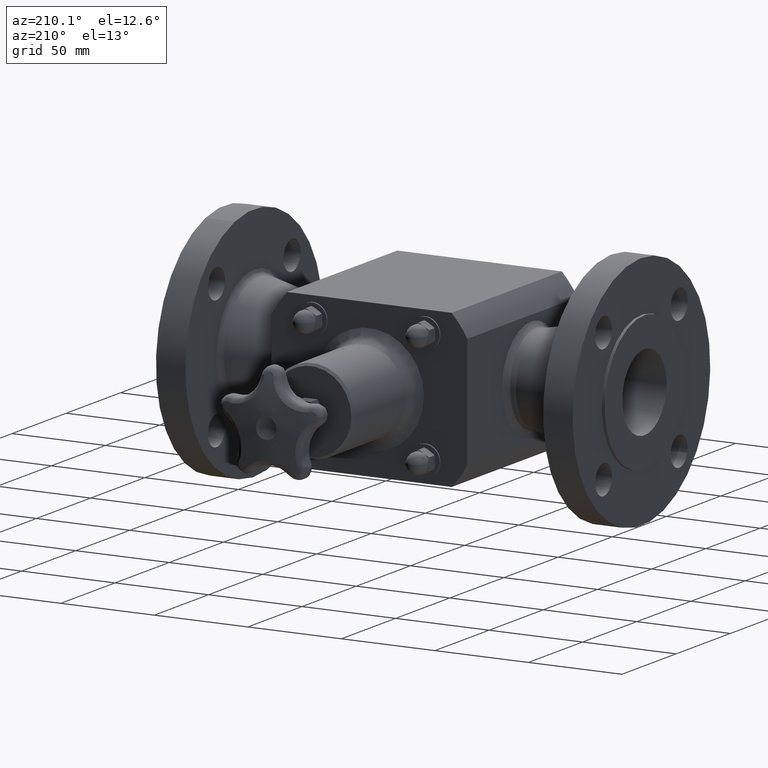
[diagram: clean part render]
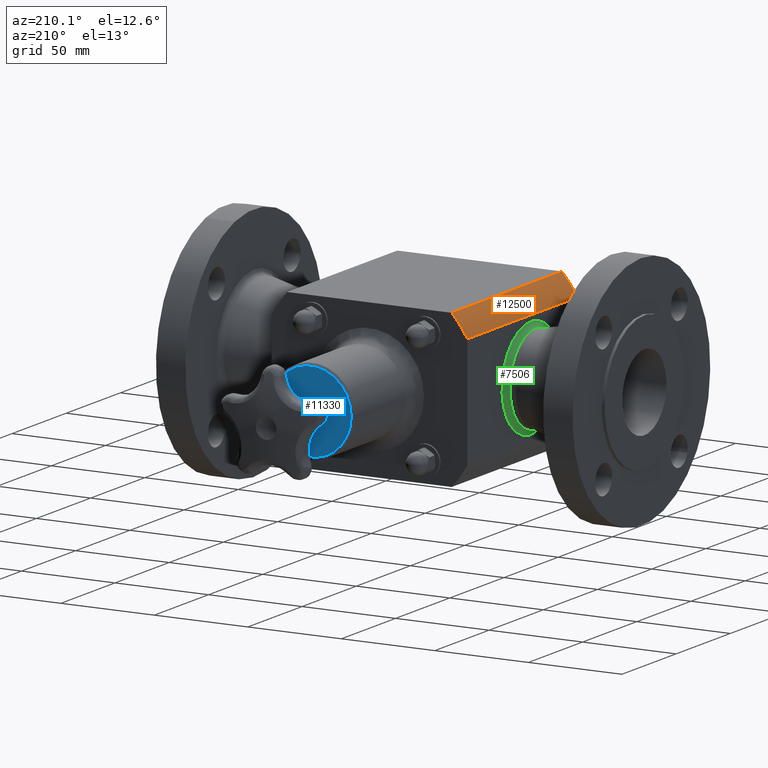
[diagram: same view with three faces highlighted in distinct colors, each labeled with its STEP entity id]
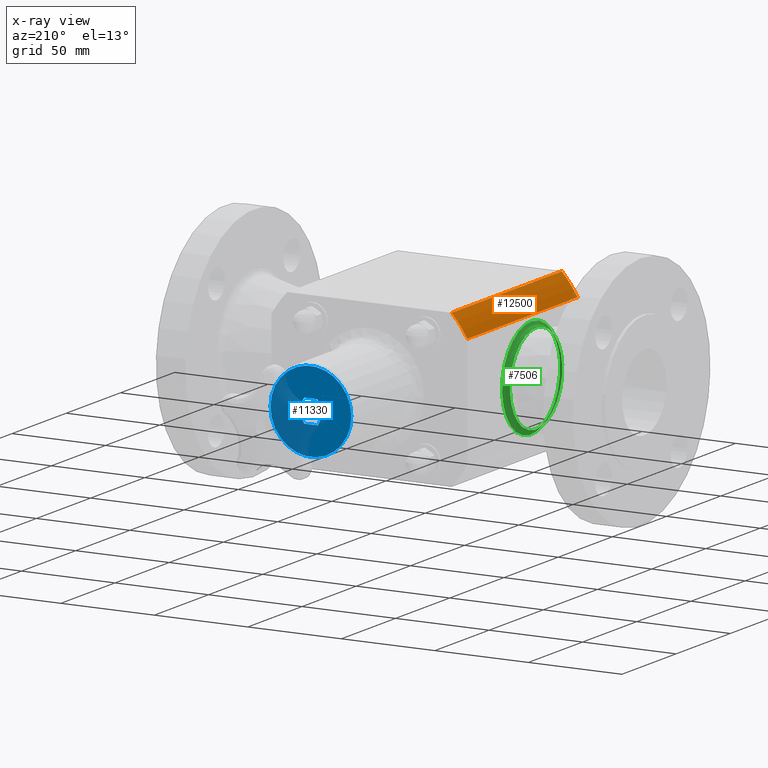
[diagram: x-ray of the same camera — body ghosted, the three highlighted faces saturated]
A machine part, auxiliary view with three faces highlighted in distinct colors.
The next image is the same camera in x-ray (body ghosted, the three faces saturated) — at least one of them is partly hidden behind the body in this view.
Their STEP definitions:

[orange] entity #12500 — the highlighted cylindrical surface (partial cylindrical patch) has radius 60.325 mm, axis along (-0, 1, -0).
#12442=CARTESIAN_POINT('',(-1.732050807568878,-3.706394E-016,1.625000000000000));
#12443=VERTEX_POINT('',#12442);
#12444=CARTESIAN_POINT('',(-1.732050807568883,4.000000000000052,1.624999999999998));
#12445=VERTEX_POINT('',#12444);
#12446=CARTESIAN_POINT('',(-1.732050807568878,-3.706394E-016,1.625000000000000));
#12447=DIRECTION('',(0.0,1.0,0.0));
#12448=VECTOR('',#12447,4.000000000000052);
#12449=LINE('',#12446,#12448);
#12450=EDGE_CURVE('',#12443,#12445,#12449,.T.);
#12468=CARTESIAN_POINT('',(0.0,0.0,0.0));
#12469=DIRECTION('',(-2.220446E-016,1.0,-8.586518E-018));
#12470=DIRECTION('',(0.868421052631579,1.885708E-016,-0.495827465300441));
#12471=AXIS2_PLACEMENT_3D('',#12468,#12469,#12470);
#12472=CYLINDRICAL_SURFACE('',#12471,2.375000000000000);
#12473=CARTESIAN_POINT('',(-2.062500000000000,-4.478556E-016,1.177590230088548));
#12474=VERTEX_POINT('',#12473);
#12475=CARTESIAN_POINT('',(-2.062500000000005,4.000000000000052,1.177590230088547));
#12476=VERTEX_POINT('',#12475);
#12477=CARTESIAN_POINT('',(-2.062500000000000,-4.478556E-016,1.177590230088548));
#12478=DIRECTION('',(0.0,1.0,0.0));
#12479=VECTOR('',#12478,4.000000000000053);
#12480=LINE('',#12477,#12479);
#12481=EDGE_CURVE('',#12474,#12476,#12480,.T.);
#12482=ORIENTED_EDGE('',*,*,#12481,.F.);
#12483=CARTESIAN_POINT('',(0.0,0.0,0.0));
#12484=DIRECTION('',(1.637588E-016,-1.0,-9.349857E-017));
#12485=DIRECTION('',(0.868421052631579,1.885708E-016,-0.495827465300441));
#12486=AXIS2_PLACEMENT_3D('',#12483,#12484,#12485);
#12487=CIRCLE('',#12486,2.375000000000000);
#12488=EDGE_CURVE('',#12443,#12474,#12487,.T.);
#12489=ORIENTED_EDGE('',*,*,#12488,.F.);
#12490=ORIENTED_EDGE('',*,*,#12450,.T.);
#12491=CARTESIAN_POINT('',(-5.694246E-015,4.000000000000054,-1.775295E-015));
#12492=DIRECTION('',(0.0,-1.0,0.0));
#12493=DIRECTION('',(1.0,0.0,0.0));
#12494=AXIS2_PLACEMENT_3D('',#12491,#12492,#12493);
#12495=CIRCLE('',#12494,2.375000000000000);
#12496=EDGE_CURVE('',#12445,#12476,#12495,.T.);
#12497=ORIENTED_EDGE('',*,*,#12496,.T.);
#12498=EDGE_LOOP('',(#12482,#12489,#12490,#12497));
#12499=FACE_OUTER_BOUND('',#12498,.T.);
#12500=ADVANCED_FACE('',(#12499),#12472,.T.);

[blue] entity #11330 — the highlighted planar face has unit normal (0, 1, 0).
#8388=CARTESIAN_POINT('',(-0.282324281633735,6.125000000000054,-2.066754E-015));
#8389=VERTEX_POINT('',#8388);
#8396=CARTESIAN_POINT('',(-0.141162140816871,6.125000000000054,0.244499999999998));
#8397=VERTEX_POINT('',#8396);
#8398=CARTESIAN_POINT('',(-0.141162140816871,6.125000000000053,0.244499999999998));
#8399=DIRECTION('',(-0.500000000000000,0.0,-0.866025403784439));
#8400=VECTOR('',#8399,0.282324281633727);
#8401=LINE('',#8398,#8400);
#8402=EDGE_CURVE('',#8397,#8389,#8401,.T.);
#8419=CARTESIAN_POINT('',(-0.141162140816871,6.125000000000054,-0.244500000000002));
#8420=VERTEX_POINT('',#8419);
#8427=CARTESIAN_POINT('',(-0.282324281633735,6.125000000000053,-2.109424E-015));
#8428=DIRECTION('',(0.500000000000001,0.0,-0.866025403784438));
#8429=VECTOR('',#8428,0.282324281633727);
#8430=LINE('',#8427,#8429);
#8431=EDGE_CURVE('',#8389,#8420,#8430,.T.);
#8443=CARTESIAN_POINT('',(0.141162140816856,6.125000000000054,-0.244500000000002));
#8444=VERTEX_POINT('',#8443);
#8451=CARTESIAN_POINT('',(-0.141162140816871,6.125000000000054,-0.244500000000002));
#8452=DIRECTION('',(1.0,0.0,0.0));
#8453=VECTOR('',#8452,0.282324281633727);
#8454=LINE('',#8451,#8453);
#8455=EDGE_CURVE('',#8420,#8444,#8454,.T.);
#8467=CARTESIAN_POINT('',(0.282324281633719,6.125000000000054,-1.746932E-015));
#8468=VERTEX_POINT('',#8467);
#8475=CARTESIAN_POINT('',(0.141162140816856,6.125000000000054,-0.244500000000002));
#8476=DIRECTION('',(0.500000000000000,0.0,0.866025403784439));
#8477=VECTOR('',#8476,0.282324281633727);
#8478=LINE('',#8475,#8477);
#8479=EDGE_CURVE('',#8444,#8468,#8478,.T.);
#8491=CARTESIAN_POINT('',(0.141162140816856,6.125000000000054,0.244499999999998));
#8492=VERTEX_POINT('',#8491);
#8499=CARTESIAN_POINT('',(0.282324281633719,6.125000000000054,-1.727785E-015));
#8500=DIRECTION('',(-0.500000000000000,0.0,0.866025403784438));
#8501=VECTOR('',#8500,0.282324281633727);
#8502=LINE('',#8499,#8501);
#8503=EDGE_CURVE('',#8468,#8492,#8502,.T.);
#8516=CARTESIAN_POINT('',(0.141162140816856,6.125000000000054,0.244499999999998));
#8517=DIRECTION('',(-1.0,0.0,0.0));
#8518=VECTOR('',#8517,0.282324281633727);
#8519=LINE('',#8516,#8518);
#8520=EDGE_CURVE('',#8492,#8397,#8519,.T.);
#11306=CARTESIAN_POINT('',(0.518749999999992,6.125000000000054,-1.714907E-015));
#11307=DIRECTION('',(0.0,1.0,0.0));
#11308=DIRECTION('',(0.0,0.0,1.0));
#11309=AXIS2_PLACEMENT_3D('',#11306,#11307,#11308);
#11310=PLANE('',#11309);
#11311=CARTESIAN_POINT('',(0.849999999999992,6.125000000000055,-1.676347E-015));
#11312=VERTEX_POINT('',#11311);
#11313=CARTESIAN_POINT('',(-7.833595E-015,6.125000000000054,-1.775295E-015));
#11314=DIRECTION('',(0.0,-1.0,0.0));
#11315=DIRECTION('',(1.0,0.0,0.0));
#11316=AXIS2_PLACEMENT_3D('',#11313,#11314,#11315);
#11317=CIRCLE('',#11316,0.850000000000000);
#11318=EDGE_CURVE('',#11312,#11312,#11317,.T.);
#11319=ORIENTED_EDGE('',*,*,#11318,.F.);
#11320=EDGE_LOOP('',(#11319));
#11321=FACE_OUTER_BOUND('',#11320,.T.);
#11322=ORIENTED_EDGE('',*,*,#8402,.T.);
#11323=ORIENTED_EDGE('',*,*,#8431,.T.);
#11324=ORIENTED_EDGE('',*,*,#8455,.T.);
#11325=ORIENTED_EDGE('',*,*,#8479,.T.);
#11326=ORIENTED_EDGE('',*,*,#8503,.T.);
#11327=ORIENTED_EDGE('',*,*,#8520,.T.);
#11328=EDGE_LOOP('',(#11322,#11323,#11324,#11325,#11326,#11327));
#11329=FACE_BOUND('',#11328,.T.);
#11330=ADVANCED_FACE('',(#11321,#11329),#11310,.T.);

[green] entity #7506 — the highlighted face is a freeform B-spline surface patch.
#7431=CARTESIAN_POINT('',(-2.168566017177983,1.687000000000000,-0.950000000004000));
#7432=CARTESIAN_POINT('',(-2.057273831881485,1.687000000000000,-0.980106396634359));
#7433=CARTESIAN_POINT('',(-2.057273831881485,1.687000000000000,-1.095398831885484));
#7434=CARTESIAN_POINT('',(-2.057273831881485,1.687000000000000,-1.210691267136608));
#7435=CARTESIAN_POINT('',(-2.168566017177983,1.687000000000000,-1.240797663766968));
#7436=CARTESIAN_POINT('',(-2.168566017177983,0.736999999996000,-0.950000000003999));
#7437=CARTESIAN_POINT('',(-2.057273831881485,0.706893603365641,-0.980106396634359));
#7438=CARTESIAN_POINT('',(-2.057273831881484,0.591601168114517,-1.095398831885483));
#7439=CARTESIAN_POINT('',(-2.057273831881484,0.476308732863392,-1.210691267136608));
#7440=CARTESIAN_POINT('',(-2.168566017177983,0.446202336233033,-1.240797663766967));
#7441=CARTESIAN_POINT('',(-2.168566017177983,0.736999999996000,-4.488105E-017));
#7442=CARTESIAN_POINT('',(-2.057273831881485,0.706893603365641,-3.192566E-017));
#7443=CARTESIAN_POINT('',(-2.057273831881484,0.591601168114517,-3.192566E-017));
#7444=CARTESIAN_POINT('',(-2.057273831881484,0.476308732863392,-3.192566E-017));
#7445=CARTESIAN_POINT('',(-2.168566017177983,0.446202336233033,-4.488105E-017));
#7446=CARTESIAN_POINT('',(-2.168566017177983,0.736999999996001,0.950000000003999));
#7447=CARTESIAN_POINT('',(-2.057273831881485,0.706893603365641,0.980106396634359));
#7448=CARTESIAN_POINT('',(-2.057273831881484,0.591601168114517,1.095398831885483));
#7449=CARTESIAN_POINT('',(-2.057273831881484,0.476308732863393,1.210691267136608));
#7450=CARTESIAN_POINT('',(-2.168566017177983,0.446202336233033,1.240797663766967));
#7451=CARTESIAN_POINT('',(-2.168566017177983,1.687000000000000,0.950000000003999));
#7452=CARTESIAN_POINT('',(-2.057273831881485,1.687000000000000,0.980106396634359));
#7453=CARTESIAN_POINT('',(-2.057273831881485,1.687000000000000,1.095398831885483));
#7454=CARTESIAN_POINT('',(-2.057273831881485,1.687000000000000,1.210691267136608));
#7455=CARTESIAN_POINT('',(-2.168566017177983,1.687000000000000,1.240797663766967));
#7456=CARTESIAN_POINT('',(-2.168566017177983,2.637000000004000,0.950000000003999));
#7457=CARTESIAN_POINT('',(-2.057273831881485,2.667106396634359,0.980106396634359));
#7458=CARTESIAN_POINT('',(-2.057273831881485,2.782398831885483,1.095398831885483));
#7459=CARTESIAN_POINT('',(-2.057273831881485,2.897691267136608,1.210691267136607));
#7460=CARTESIAN_POINT('',(-2.168566017177984,2.927797663766967,1.240797663766967));
#7461=CARTESIAN_POINT('',(-2.168566017177983,2.637000000004000,-4.889703E-016));
#7462=CARTESIAN_POINT('',(-2.057273831881485,2.667106396634359,-4.760149E-016));
#7463=CARTESIAN_POINT('',(-2.057273831881485,2.782398831885484,-4.760149E-016));
#7464=CARTESIAN_POINT('',(-2.057273831881485,2.897691267136608,-4.760149E-016));
#7465=CARTESIAN_POINT('',(-2.168566017177984,2.927797663766968,-4.889703E-016));
#7466=CARTESIAN_POINT('',(-2.168566017177983,2.637000000004000,-0.950000000004000));
#7467=CARTESIAN_POINT('',(-2.057273831881485,2.667106396634359,-0.980106396634359));
#7468=CARTESIAN_POINT('',(-2.057273831881485,2.782398831885483,-1.095398831885484));
#7469=CARTESIAN_POINT('',(-2.057273831881485,2.897691267136608,-1.210691267136608));
#7470=CARTESIAN_POINT('',(-2.168566017177984,2.927797663766967,-1.240797663766968));
#7471=CARTESIAN_POINT('',(-2.168566017177983,1.687000000000000,-0.950000000004000));
#7472=CARTESIAN_POINT('',(-2.057273831881485,1.687000000000000,-0.980106396634359));
#7473=CARTESIAN_POINT('',(-2.057273831881485,1.687000000000000,-1.095398831885484));
#7474=CARTESIAN_POINT('',(-2.057273831881485,1.687000000000000,-1.210691267136608));
#7475=CARTESIAN_POINT('',(-2.168566017177983,1.687000000000000,-1.240797663766968));
#7483=(BOUNDED_SURFACE()B_SPLINE_SURFACE(2,2,((#7431,#7436,#7441,#7446,#7451,#7456,#7461,#7466,#7471),(#7432,#7437,#7442,#7447,#7452,#7457,#7462,#7467,#7472),(#7433,#7438,#7443,#7448,#7453,#7458,#7463,#7468,#7473),(#7434,#7439,#7444,#7449,#7454,#7459,#7464,#7469,#7474),(#7435,#7440,#7445,#7450,#7455,#7460,#7465,#7470,#7475)),.UNSPECIFIED.,.F.,.T.,.U.)B_SPLINE_SURFACE_WITH_KNOTS((3,2,3),(3,2,2,2,3),(-2.877399273687030,-1.570796326794897,-0.264193379902763),(0.0,1.570796326794897,3.141592653589793,4.712388980384690,6.283185307179586),.UNSPECIFIED.)GEOMETRIC_REPRESENTATION_ITEM()RATIONAL_B_SPLINE_SURFACE(((1.0,0.707106781186548,1.0,0.707106781186548,1.0,0.707106781186548,1.0,0.707106781186548,1.0),(0.794081456786155,0.561500382907983,0.794081456786155,0.561500382907983,0.794081456786155,0.561500382907983,0.794081456786155,0.561500382907983,0.794081456786155),(1.0,0.707106781186548,1.0,0.707106781186548,1.0,0.707106781186548,1.0,0.707106781186548,1.0),(0.794081456786155,0.561500382907983,0.794081456786155,0.561500382907983,0.794081456786155,0.561500382907983,0.794081456786155,0.561500382907983,0.794081456786155),(1.0,0.707106781186548,1.0,0.707106781186548,1.0,0.707106781186548,1.0,0.707106781186548,1.0)))REPRESENTATION_ITEM('')SURFACE());
#7484=CARTESIAN_POINT('',(-2.168566017177983,1.954462554586341,-0.911572148489492));
#7485=VERTEX_POINT('',#7484);
#7486=CARTESIAN_POINT('',(-2.168566017177982,1.687000000000000,-2.715043E-016));
#7487=DIRECTION('',(-1.0,4.950072E-017,-1.687095E-016));
#7488=DIRECTION('',(-1.758216E-016,-0.281539531142323,0.959549629984901));
#7489=AXIS2_PLACEMENT_3D('',#7486,#7487,#7488);
#7490=CIRCLE('',#7489,0.950000000004000);
#7491=EDGE_CURVE('',#7485,#7485,#7490,.T.);
#7492=ORIENTED_EDGE('',*,*,#7491,.F.);
#7493=EDGE_LOOP('',(#7492));
#7494=FACE_OUTER_BOUND('',#7493,.T.);
#7495=CARTESIAN_POINT('',(-2.062500000000000,1.984324331332765,-1.013347756026597));
#7496=VERTEX_POINT('',#7495);
#7497=CARTESIAN_POINT('',(-2.062500000000000,1.687000000000000,-2.545786E-016));
#7498=DIRECTION('',(1.0,0.0,0.0));
#7499=DIRECTION('',(0.0,0.0,1.0));
#7500=AXIS2_PLACEMENT_3D('',#7497,#7498,#7499);
#7501=CIRCLE('',#7500,1.056066017181983);
#7502=EDGE_CURVE('',#7496,#7496,#7501,.T.);
#7503=ORIENTED_EDGE('',*,*,#7502,.F.);
#7504=EDGE_LOOP('',(#7503));
#7505=FACE_BOUND('',#7504,.T.);
#7506=ADVANCED_FACE('',(#7494,#7505),#7483,.T.);